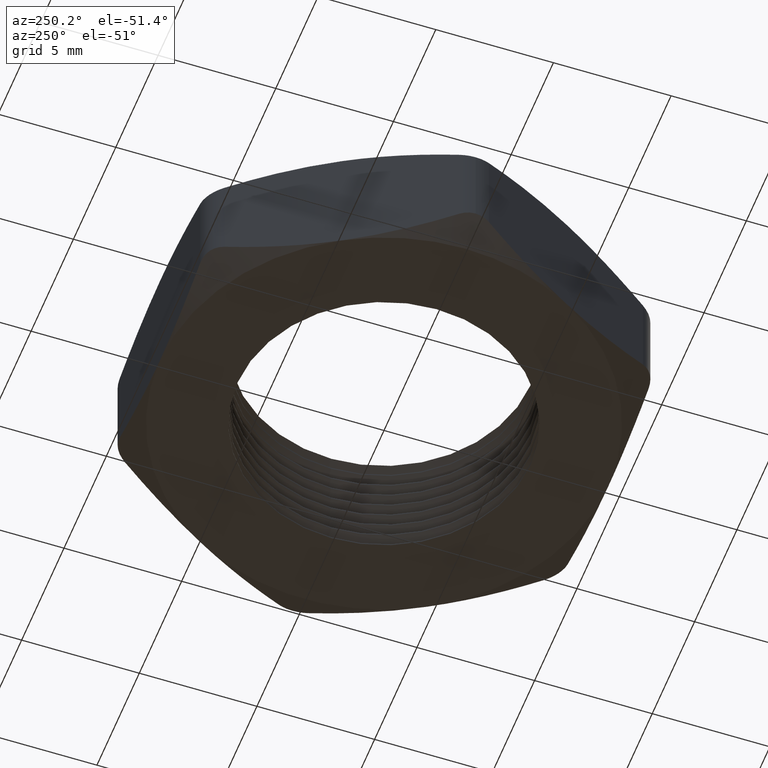
[diagram: clean part render]
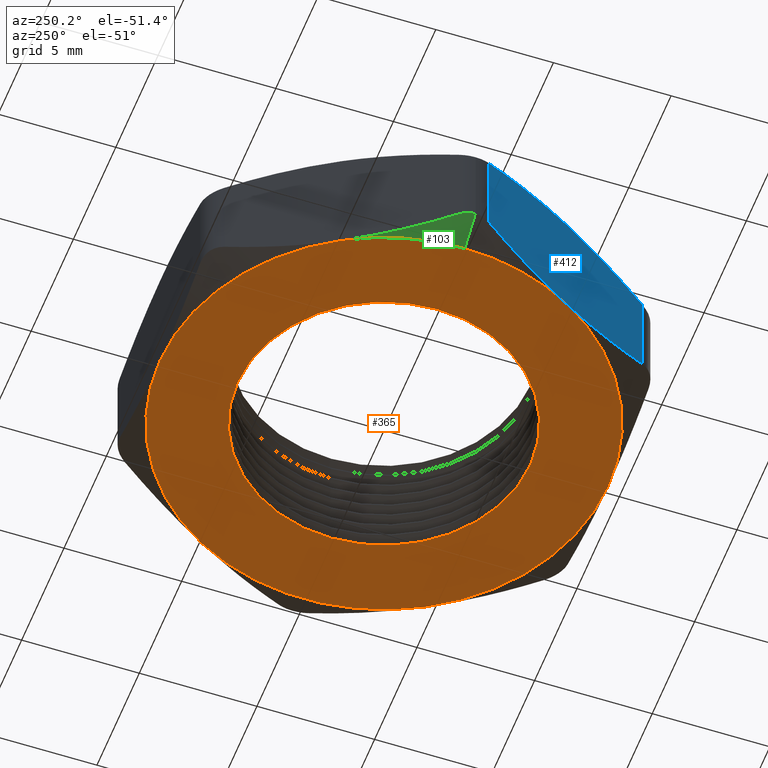
[diagram: same view with three faces highlighted in distinct colors, each labeled with its STEP entity id]
A machine part, auxiliary view with three faces highlighted in distinct colors.
Their STEP definitions:

[orange] entity #365 — the highlighted planar face has unit normal (0, 0, -1).
#106 = EDGE_CURVE ( 'NONE', #107, #108, #872, .T. ) ;
#107 = VERTEX_POINT ( 'NONE', #868 ) ;
#108 = VERTEX_POINT ( 'NONE', #867 ) ;
#243 = VERTEX_POINT ( 'NONE', #1185 ) ;
#277 = VERTEX_POINT ( 'NONE', #1359 ) ;
#285 = VERTEX_POINT ( 'NONE', #1272 ) ;
#302 = VERTEX_POINT ( 'NONE', #1410 ) ;
#324 = EDGE_CURVE ( 'NONE', #285, #107, #1296, .T. ) ;
#325 = ORIENTED_EDGE ( 'NONE', *, *, #106, .T. ) ;
#326 = ORIENTED_EDGE ( 'NONE', *, *, #327, .T. ) ;
#327 = EDGE_CURVE ( 'NONE', #108, #335, #1286, .T. ) ;
#328 = ORIENTED_EDGE ( 'NONE', *, *, #713, .T. ) ;
#335 = VERTEX_POINT ( 'NONE', #1499 ) ;
#347 = ORIENTED_EDGE ( 'NONE', *, *, #479, .T. ) ;
#348 = ORIENTED_EDGE ( 'NONE', *, *, #359, .T. ) ;
#349 = EDGE_LOOP ( 'NONE', ( #350, #325, #326, #328, #556, #553, #715 ) ) ;
#350 = ORIENTED_EDGE ( 'NONE', *, *, #324, .T. ) ;
#359 = EDGE_CURVE ( 'NONE', #401, #480, #1426, .T. ) ;
#365 = ADVANCED_FACE ( 'NONE', ( #1486, #1485 ), #1484, .T. ) ;
#366 = EDGE_LOOP ( 'NONE', ( #347, #348 ) ) ;
#401 = VERTEX_POINT ( 'NONE', #1696 ) ;
#479 = EDGE_CURVE ( 'NONE', #480, #401, #1951, .T. ) ;
#480 = VERTEX_POINT ( 'NONE', #1947 ) ;
#552 = EDGE_CURVE ( 'NONE', #243, #302, #1875, .T. ) ;
#553 = ORIENTED_EDGE ( 'NONE', *, *, #552, .T. ) ;
#556 = ORIENTED_EDGE ( 'NONE', *, *, #714, .T. ) ;
#713 = EDGE_CURVE ( 'NONE', #335, #277, #2002, .T. ) ;
#714 = EDGE_CURVE ( 'NONE', #277, #243, #1993, .T. ) ;
#715 = ORIENTED_EDGE ( 'NONE', *, *, #716, .T. ) ;
#716 = EDGE_CURVE ( 'NONE', #302, #285, #1988, .T. ) ;
#736 = AXIS2_PLACEMENT_3D ( 'NONE', #1039, #1142, #1194 ) ;
#867 = CARTESIAN_POINT ( 'NONE',  ( -0.3247595264191646100, 0.1875000000000000600, 0.0000000000000000000 ) ) ;
#868 = CARTESIAN_POINT ( 'NONE',  ( -0.3750000000000001100, 0.0000000000000000000, 0.0000000000000000000 ) ) ;
#869 = DIRECTION ( 'NONE',  ( -1.000000000000000000, 0.0000000000000000000, 0.0000000000000000000 ) ) ;
#870 = DIRECTION ( 'NONE',  ( 0.0000000000000000000, 0.0000000000000000000, -1.000000000000000000 ) ) ;
#871 = AXIS2_PLACEMENT_3D ( 'NONE', #877, #870, #869 ) ;
#872 = CIRCLE ( 'NONE', #871, 0.3750000000000001100 ) ;
#877 = CARTESIAN_POINT ( 'NONE',  ( 0.0000000000000000000, 0.0000000000000000000, 0.0000000000000000000 ) ) ;
#1039 = CARTESIAN_POINT ( 'NONE',  ( 0.0000000000000000000, 0.0000000000000000000, 0.0000000000000000000 ) ) ;
#1142 = DIRECTION ( 'NONE',  ( 0.0000000000000000000, 0.0000000000000000000, -1.000000000000000000 ) ) ;
#1185 = CARTESIAN_POINT ( 'NONE',  ( 0.3247595264191645600, -0.1875000000000000300, 0.0000000000000000000 ) ) ;
#1194 = DIRECTION ( 'NONE',  ( -1.000000000000000000, 0.0000000000000000000, 0.0000000000000000000 ) ) ;
#1272 = CARTESIAN_POINT ( 'NONE',  ( -0.3247595264191646700, -0.1874999999999999400, 0.0000000000000000000 ) ) ;
#1286 = CIRCLE ( 'NONE', #736, 0.3750000000000001100 ) ;
#1288 = DIRECTION ( 'NONE',  ( -1.000000000000000000, 0.0000000000000000000, 0.0000000000000000000 ) ) ;
#1289 = DIRECTION ( 'NONE',  ( 0.0000000000000000000, 0.0000000000000000000, -1.000000000000000000 ) ) ;
#1290 = CARTESIAN_POINT ( 'NONE',  ( 0.0000000000000000000, 0.0000000000000000000, 0.0000000000000000000 ) ) ;
#1291 = AXIS2_PLACEMENT_3D ( 'NONE', #1290, #1289, #1288 ) ;
#1296 = CIRCLE ( 'NONE', #1291, 0.3750000000000001100 ) ;
#1359 = CARTESIAN_POINT ( 'NONE',  ( 0.3247595264191646100, 0.1874999999999999700, 0.0000000000000000000 ) ) ;
#1410 = CARTESIAN_POINT ( 'NONE',  ( 5.914624404477002600E-017, -0.3750000000000001100, 0.0000000000000000000 ) ) ;
#1422 = DIRECTION ( 'NONE',  ( 1.000000000000000000, 0.0000000000000000000, 0.0000000000000000000 ) ) ;
#1423 = DIRECTION ( 'NONE',  ( 0.0000000000000000000, 0.0000000000000000000, 1.000000000000000000 ) ) ;
#1424 = CARTESIAN_POINT ( 'NONE',  ( 0.0000000000000000000, 0.0000000000000000000, 0.0000000000000000000 ) ) ;
#1425 = AXIS2_PLACEMENT_3D ( 'NONE', #1424, #1423, #1422 ) ;
#1426 = CIRCLE ( 'NONE', #1425, 0.2450000000000000000 ) ;
#1480 = DIRECTION ( 'NONE',  ( -1.000000000000000000, 0.0000000000000000000, 0.0000000000000000000 ) ) ;
#1481 = DIRECTION ( 'NONE',  ( 0.0000000000000000000, 0.0000000000000000000, -1.000000000000000000 ) ) ;
#1482 = CARTESIAN_POINT ( 'NONE',  ( -0.2165063509461097000, 0.3750000000000001100, 0.0000000000000000000 ) ) ;
#1483 = AXIS2_PLACEMENT_3D ( 'NONE', #1482, #1481, #1480 ) ;
#1484 = PLANE ( 'NONE',  #1483 ) ;
#1485 = FACE_OUTER_BOUND ( 'NONE', #349, .T. ) ;
#1486 = FACE_BOUND ( 'NONE', #366, .T. ) ;
#1499 = CARTESIAN_POINT ( 'NONE',  ( 0.0000000000000000000, 0.3750000000000001100, 0.0000000000000000000 ) ) ;
#1696 = CARTESIAN_POINT ( 'NONE',  ( 0.2450000000000000000, 3.000384657911014900E-017, 0.0000000000000000000 ) ) ;
#1871 = DIRECTION ( 'NONE',  ( -1.000000000000000000, 0.0000000000000000000, 0.0000000000000000000 ) ) ;
#1872 = DIRECTION ( 'NONE',  ( 0.0000000000000000000, 0.0000000000000000000, -1.000000000000000000 ) ) ;
#1873 = CARTESIAN_POINT ( 'NONE',  ( 0.0000000000000000000, 0.0000000000000000000, 0.0000000000000000000 ) ) ;
#1874 = AXIS2_PLACEMENT_3D ( 'NONE', #1873, #1872, #1871 ) ;
#1875 = CIRCLE ( 'NONE', #1874, 0.3750000000000001100 ) ;
#1897 = CARTESIAN_POINT ( 'NONE',  ( 0.0000000000000000000, 0.0000000000000000000, 0.0000000000000000000 ) ) ;
#1947 = CARTESIAN_POINT ( 'NONE',  ( -0.2450000000000000000, 0.0000000000000000000, 0.0000000000000000000 ) ) ;
#1948 = DIRECTION ( 'NONE',  ( 1.000000000000000000, 0.0000000000000000000, 0.0000000000000000000 ) ) ;
#1949 = DIRECTION ( 'NONE',  ( 0.0000000000000000000, 0.0000000000000000000, 1.000000000000000000 ) ) ;
#1950 = AXIS2_PLACEMENT_3D ( 'NONE', #1897, #1949, #1948 ) ;
#1951 = CIRCLE ( 'NONE', #1950, 0.2450000000000000000 ) ;
#1984 = DIRECTION ( 'NONE',  ( -1.000000000000000000, 0.0000000000000000000, 0.0000000000000000000 ) ) ;
#1985 = DIRECTION ( 'NONE',  ( 0.0000000000000000000, 0.0000000000000000000, -1.000000000000000000 ) ) ;
#1986 = CARTESIAN_POINT ( 'NONE',  ( 0.0000000000000000000, 0.0000000000000000000, 0.0000000000000000000 ) ) ;
#1987 = AXIS2_PLACEMENT_3D ( 'NONE', #1986, #1985, #1984 ) ;
#1988 = CIRCLE ( 'NONE', #1987, 0.3750000000000001100 ) ;
#1989 = DIRECTION ( 'NONE',  ( -1.000000000000000000, 0.0000000000000000000, 0.0000000000000000000 ) ) ;
#1990 = DIRECTION ( 'NONE',  ( 0.0000000000000000000, 0.0000000000000000000, -1.000000000000000000 ) ) ;
#1991 = CARTESIAN_POINT ( 'NONE',  ( 0.0000000000000000000, 0.0000000000000000000, 0.0000000000000000000 ) ) ;
#1992 = AXIS2_PLACEMENT_3D ( 'NONE', #1991, #1990, #1989 ) ;
#1993 = CIRCLE ( 'NONE', #1992, 0.3750000000000001100 ) ;
#1994 = DIRECTION ( 'NONE',  ( -1.000000000000000000, 0.0000000000000000000, 0.0000000000000000000 ) ) ;
#1995 = DIRECTION ( 'NONE',  ( 0.0000000000000000000, 0.0000000000000000000, -1.000000000000000000 ) ) ;
#1996 = CARTESIAN_POINT ( 'NONE',  ( 0.0000000000000000000, 0.0000000000000000000, 0.0000000000000000000 ) ) ;
#1997 = AXIS2_PLACEMENT_3D ( 'NONE', #1996, #1995, #1994 ) ;
#2002 = CIRCLE ( 'NONE', #1997, 0.3750000000000001100 ) ;

[blue] entity #412 — the highlighted planar face has unit normal (0.866, 0.5, 0).
#91 = VERTEX_POINT ( 'NONE', #963 ) ;
#100 = VERTEX_POINT ( 'NONE', #890 ) ;
#102 = EDGE_CURVE ( 'NONE', #91, #100, #889, .T. ) ;
#282 = ORIENTED_EDGE ( 'NONE', *, *, #283, .F. ) ;
#283 = EDGE_CURVE ( 'NONE', #284, #285, #1274, .T. ) ;
#284 = VERTEX_POINT ( 'NONE', #1273 ) ;
#285 = VERTEX_POINT ( 'NONE', #1272 ) ;
#286 = ORIENTED_EDGE ( 'NONE', *, *, #287, .T. ) ;
#287 = EDGE_CURVE ( 'NONE', #284, #288, #1352, .T. ) ;
#288 = VERTEX_POINT ( 'NONE', #1348 ) ;
#289 = ORIENTED_EDGE ( 'NONE', *, *, #290, .F. ) ;
#290 = EDGE_CURVE ( 'NONE', #291, #288, #1310, .T. ) ;
#291 = VERTEX_POINT ( 'NONE', #1309 ) ;
#292 = ORIENTED_EDGE ( 'NONE', *, *, #293, .F. ) ;
#293 = EDGE_CURVE ( 'NONE', #91, #291, #1381, .T. ) ;
#294 = ORIENTED_EDGE ( 'NONE', *, *, #102, .T. ) ;
#295 = ORIENTED_EDGE ( 'NONE', *, *, #296, .F. ) ;
#296 = EDGE_CURVE ( 'NONE', #285, #100, #1263, .T. ) ;
#412 = ADVANCED_FACE ( 'NONE', ( #1652 ), #1649, .F. ) ;
#413 = EDGE_LOOP ( 'NONE', ( #282, #286, #289, #292, #294, #295 ) ) ;
#880 = DIRECTION ( 'NONE',  ( 0.0000000000000000000, 0.0000000000000000000, -1.000000000000000000 ) ) ;
#881 = VECTOR ( 'NONE', #880, 39.37007874015748100 ) ;
#882 = CARTESIAN_POINT ( 'NONE',  ( -0.4185789451624787300, -0.02500000000000002900, 0.2000000000000000100 ) ) ;
#889 = LINE ( 'NONE', #882, #881 ) ;
#890 = CARTESIAN_POINT ( 'NONE',  ( -0.4185789451624788400, -0.02499999999999998400, 0.02559096649278918800 ) ) ;
#963 = CARTESIAN_POINT ( 'NONE',  ( -0.4185789451624683500, -0.02500000000001800800, 0.1744090335072159800 ) ) ;
#1256 = CARTESIAN_POINT ( 'NONE',  ( -0.3643367906226816500, -0.1189501675749315100, 0.004597593372874871200 ) ) ;
#1257 = CARTESIAN_POINT ( 'NONE',  ( -0.3564809560658953000, -0.1325568721631410800, 0.002889938155333194500 ) ) ;
#1258 = CARTESIAN_POINT ( 'NONE',  ( -0.3406768993189374700, -0.1599303014145736200, 0.0005901327189829690200 ) ) ;
#1259 = CARTESIAN_POINT ( 'NONE',  ( -0.3326984364596727900, -0.1737494044531210400, -1.701735877889249200E-016 ) ) ;
#1260 = CARTESIAN_POINT ( 'NONE',  ( -0.3247595264191646700, -0.1874999999999999400, 0.0000000000000000000 ) ) ;
#1263 = B_SPLINE_CURVE_WITH_KNOTS ( 'NONE', 3,
 ( #1260, #1259, #1258, #1257, #1256, #1418, #1417, #1416 ),
 .UNSPECIFIED., .F., .F.,
 ( 4, 2, 2, 4 ),
 ( 0.005564589980275969800, 0.006762186791010956300, 0.007959783601745942800, 0.01035497722321591400 ),
 .UNSPECIFIED. ) ;
#1265 = CARTESIAN_POINT ( 'NONE',  ( -0.3247595264191646700, -0.1875000000000000300, 0.2000000000000000100 ) ) ;
#1266 = CARTESIAN_POINT ( 'NONE',  ( -0.3407024386049762900, -0.1598860660735655400, 0.2000000000000002300 ) ) ;
#1267 = CARTESIAN_POINT ( 'NONE',  ( -0.3564745969185513800, -0.1325678865294334400, 0.1976226184107980600 ) ) ;
#1272 = CARTESIAN_POINT ( 'NONE',  ( -0.3247595264191646700, -0.1874999999999999400, 0.0000000000000000000 ) ) ;
#1273 = CARTESIAN_POINT ( 'NONE',  ( -0.2309401076758609600, -0.3499999999999819900, 0.02559096649278403200 ) ) ;
#1274 = B_SPLINE_CURVE_WITH_KNOTS ( 'NONE', 3,
 ( #1327, #1326, #1325, #1355, #1354, #1353 ),
 .UNSPECIFIED., .F., .F.,
 ( 4, 2, 4 ),
 ( 0.0007545642487503553800, 0.003159577114513162600, 0.005564589980275969800 ),
 .UNSPECIFIED. ) ;
#1309 = CARTESIAN_POINT ( 'NONE',  ( -0.3247595264191646700, -0.1875000000000000300, 0.2000000000000000100 ) ) ;
#1310 = B_SPLINE_CURVE_WITH_KNOTS ( 'NONE', 3,
 ( #1344, #1343, #1342, #1341, #1340, #1339, #1383, #1382 ),
 .UNSPECIFIED., .F., .F.,
 ( 4, 2, 2, 4 ),
 ( 0.005564589980275969800, 0.006762186791010956300, 0.007959783601745942800, 0.01035497722321591400 ),
 .UNSPECIFIED. ) ;
#1325 = CARTESIAN_POINT ( 'NONE',  ( -0.2617931203539623500, -0.2965610144749438200, 0.01121127792037122100 ) ) ;
#1326 = CARTESIAN_POINT ( 'NONE',  ( -0.2463125204502328300, -0.3233742000398489000, 0.01764798529039914700 ) ) ;
#1327 = CARTESIAN_POINT ( 'NONE',  ( -0.2309401076758609600, -0.3499999999999819900, 0.02559096649278403200 ) ) ;
#1339 = CARTESIAN_POINT ( 'NONE',  ( -0.2617398379950048900, -0.2966533022278050000, 0.1887692090713127300 ) ) ;
#1340 = CARTESIAN_POINT ( 'NONE',  ( -0.2851822622156476900, -0.2560498324250684600, 0.1954024066271251900 ) ) ;
#1341 = CARTESIAN_POINT ( 'NONE',  ( -0.2930380967724341400, -0.2424431278368588400, 0.1971100618446667600 ) ) ;
#1342 = CARTESIAN_POINT ( 'NONE',  ( -0.3088421535193919300, -0.2150696985854264100, 0.1994098672810170300 ) ) ;
#1343 = CARTESIAN_POINT ( 'NONE',  ( -0.3168206163786563300, -0.2012505955468788500, 0.2000000000000001500 ) ) ;
#1344 = CARTESIAN_POINT ( 'NONE',  ( -0.3247595264191646700, -0.1875000000000000300, 0.2000000000000000100 ) ) ;
#1348 = CARTESIAN_POINT ( 'NONE',  ( -0.2309401076758505800, -0.3500000000000000300, 0.1744090335072107900 ) ) ;
#1349 = DIRECTION ( 'NONE',  ( 0.0000000000000000000, 0.0000000000000000000, 1.000000000000000000 ) ) ;
#1350 = VECTOR ( 'NONE', #1349, 39.37007874015748100 ) ;
#1351 = CARTESIAN_POINT ( 'NONE',  ( -0.2309401076758506300, -0.3499999999999999800, 0.2000000000000000100 ) ) ;
#1352 = LINE ( 'NONE', #1351, #1350 ) ;
#1353 = CARTESIAN_POINT ( 'NONE',  ( -0.3247595264191646700, -0.1874999999999999400, 0.0000000000000000000 ) ) ;
#1354 = CARTESIAN_POINT ( 'NONE',  ( -0.3088166142333531600, -0.2151139339264343500, -1.701402400350960700E-016 ) ) ;
#1355 = CARTESIAN_POINT ( 'NONE',  ( -0.2930444559197779600, -0.2424321134705665900, 0.002377381589201922100 ) ) ;
#1378 = CARTESIAN_POINT ( 'NONE',  ( -0.3877259324843670400, -0.07843898552505623700, 0.1887887220796288200 ) ) ;
#1379 = CARTESIAN_POINT ( 'NONE',  ( -0.4032065323880963900, -0.05162579996015103500, 0.1823520147096008300 ) ) ;
#1380 = CARTESIAN_POINT ( 'NONE',  ( -0.4185789451624683500, -0.02500000000001800800, 0.1744090335072159800 ) ) ;
#1381 = B_SPLINE_CURVE_WITH_KNOTS ( 'NONE', 3,
 ( #1380, #1379, #1378, #1267, #1266, #1265 ),
 .UNSPECIFIED., .F., .F.,
 ( 4, 2, 4 ),
 ( 0.0007545642487503563500, 0.003159577114513163100, 0.005564589980275969800 ),
 .UNSPECIFIED. ) ;
#1382 = CARTESIAN_POINT ( 'NONE',  ( -0.2309401076758505800, -0.3500000000000000300, 0.1744090335072107900 ) ) ;
#1383 = CARTESIAN_POINT ( 'NONE',  ( -0.2462782553154251600, -0.3234335489942642400, 0.1823343097906882600 ) ) ;
#1416 = CARTESIAN_POINT ( 'NONE',  ( -0.4185789451624788400, -0.02499999999999998400, 0.02559096649278918800 ) ) ;
#1417 = CARTESIAN_POINT ( 'NONE',  ( -0.4032407975229043700, -0.05156645100573575100, 0.01766569020931175700 ) ) ;
#1418 = CARTESIAN_POINT ( 'NONE',  ( -0.3877792148433245600, -0.07834669777219498100, 0.01123079092868730900 ) ) ;
#1638 = DIRECTION ( 'NONE',  ( -0.4999999999999996100, 0.8660254037844388200, 0.0000000000000000000 ) ) ;
#1639 = DIRECTION ( 'NONE',  ( 0.8660254037844388200, 0.4999999999999996100, 0.0000000000000000000 ) ) ;
#1648 = CARTESIAN_POINT ( 'NONE',  ( -0.4330127018922194100, 1.498552917579708900E-018, 0.2000000000000000100 ) ) ;
#1649 = PLANE ( 'NONE',  #1651 ) ;
#1651 = AXIS2_PLACEMENT_3D ( 'NONE', #1648, #1639, #1638 ) ;
#1652 = FACE_OUTER_BOUND ( 'NONE', #413, .T. ) ;

[green] entity #103 — the highlighted conical surface has half-angle 60 deg.
#6 = ORIENTED_EDGE ( 'NONE', *, *, #14, .T. ) ;
#8 = VERTEX_POINT ( 'NONE', #757 ) ;
#11 = ORIENTED_EDGE ( 'NONE', *, *, #18, .T. ) ;
#14 = EDGE_CURVE ( 'NONE', #94, #8, #751, .T. ) ;
#18 = EDGE_CURVE ( 'NONE', #8, #108, #738, .T. ) ;
#94 = VERTEX_POINT ( 'NONE', #952 ) ;
#103 = ADVANCED_FACE ( 'NONE', ( #879 ), #878, .T. ) ;
#104 = EDGE_LOOP ( 'NONE', ( #105, #109, #6, #11 ) ) ;
#105 = ORIENTED_EDGE ( 'NONE', *, *, #106, .F. ) ;
#106 = EDGE_CURVE ( 'NONE', #107, #108, #872, .T. ) ;
#107 = VERTEX_POINT ( 'NONE', #868 ) ;
#108 = VERTEX_POINT ( 'NONE', #867 ) ;
#109 = ORIENTED_EDGE ( 'NONE', *, *, #110, .T. ) ;
#110 = EDGE_CURVE ( 'NONE', #107, #94, #915, .T. ) ;
#729 = CARTESIAN_POINT ( 'NONE',  ( -0.3247595264191646100, 0.1875000000000000600, 0.0000000000000000000 ) ) ;
#730 = CARTESIAN_POINT ( 'NONE',  ( -0.3407024386049761200, 0.1598860660735655600, -2.478405064564551100E-016 ) ) ;
#731 = CARTESIAN_POINT ( 'NONE',  ( -0.3564745969185512700, 0.1325678865294334400, 0.002377381589201906900 ) ) ;
#732 = CARTESIAN_POINT ( 'NONE',  ( -0.3877259324843671000, 0.07843898552505623700, 0.01121127792037121200 ) ) ;
#733 = CARTESIAN_POINT ( 'NONE',  ( -0.4032065323880963900, 0.05162579996015098000, 0.01764798529039914000 ) ) ;
#734 = CARTESIAN_POINT ( 'NONE',  ( -0.4185789451624684600, 0.02500000000001798700, 0.02559096649278403200 ) ) ;
#738 = B_SPLINE_CURVE_WITH_KNOTS ( 'NONE', 3,
 ( #734, #733, #732, #731, #730, #729 ),
 .UNSPECIFIED., .F., .F.,
 ( 4, 2, 4 ),
 ( 0.0007545642487503562400, 0.003159577114513164800, 0.005564589980275973200 ),
 .UNSPECIFIED. ) ;
#741 = CARTESIAN_POINT ( 'NONE',  ( -0.4185789451624684600, 0.02500000000001798700, 0.02559096649278403200 ) ) ;
#742 = CARTESIAN_POINT ( 'NONE',  ( -0.4207294041380170200, 0.02127529579478045600, 0.02670211641244793800 ) ) ;
#743 = CARTESIAN_POINT ( 'NONE',  ( -0.4224201646834369600, 0.01721831756676461500, 0.02756835478330192300 ) ) ;
#744 = CARTESIAN_POINT ( 'NONE',  ( -0.4246838449260745800, 0.008826956808419467200, 0.02872578618615685400 ) ) ;
#745 = CARTESIAN_POINT ( 'NONE',  ( -0.4252776749732541900, 0.004388562669415085400, 0.02902782918003678200 ) ) ;
#746 = CARTESIAN_POINT ( 'NONE',  ( -0.4252776749734100100, 1.775217357099142600E-014, 0.02902782918011619100 ) ) ;
#751 = B_SPLINE_CURVE_WITH_KNOTS ( 'NONE', 3,
 ( #746, #745, #744, #743, #742, #741 ),
 .UNSPECIFIED., .F., .F.,
 ( 4, 2, 4 ),
 ( 0.0006698882910001488800, 0.001003754490161115200, 0.001337620689322081500 ),
 .UNSPECIFIED. ) ;
#757 = CARTESIAN_POINT ( 'NONE',  ( -0.4185789451624684600, 0.02500000000001798700, 0.02559096649278403200 ) ) ;
#867 = CARTESIAN_POINT ( 'NONE',  ( -0.3247595264191646100, 0.1875000000000000600, 0.0000000000000000000 ) ) ;
#868 = CARTESIAN_POINT ( 'NONE',  ( -0.3750000000000001100, 0.0000000000000000000, 0.0000000000000000000 ) ) ;
#869 = DIRECTION ( 'NONE',  ( -1.000000000000000000, 0.0000000000000000000, 0.0000000000000000000 ) ) ;
#870 = DIRECTION ( 'NONE',  ( 0.0000000000000000000, 0.0000000000000000000, -1.000000000000000000 ) ) ;
#871 = AXIS2_PLACEMENT_3D ( 'NONE', #877, #870, #869 ) ;
#872 = CIRCLE ( 'NONE', #871, 0.3750000000000001100 ) ;
#873 = DIRECTION ( 'NONE',  ( -1.000000000000000000, 0.0000000000000000000, 0.0000000000000000000 ) ) ;
#874 = DIRECTION ( 'NONE',  ( 0.0000000000000000000, 0.0000000000000000000, 1.000000000000000000 ) ) ;
#875 = CARTESIAN_POINT ( 'NONE',  ( 0.0000000000000000000, 0.0000000000000000000, 0.0000000000000000000 ) ) ;
#876 = AXIS2_PLACEMENT_3D ( 'NONE', #875, #874, #873 ) ;
#877 = CARTESIAN_POINT ( 'NONE',  ( 0.0000000000000000000, 0.0000000000000000000, 0.0000000000000000000 ) ) ;
#878 = CONICAL_SURFACE ( 'NONE', #876, 0.3750000000000001100, 1.047197551196600100 ) ;
#879 = FACE_OUTER_BOUND ( 'NONE', #104, .T. ) ;
#912 = DIRECTION ( 'NONE',  ( -0.8660254037844397100, 0.0000000000000000000, 0.4999999999999979500 ) ) ;
#913 = VECTOR ( 'NONE', #912, 39.37007874015748900 ) ;
#914 = CARTESIAN_POINT ( 'NONE',  ( -0.3750000000000001100, 0.0000000000000000000, 0.0000000000000000000 ) ) ;
#915 = LINE ( 'NONE', #914, #913 ) ;
#952 = CARTESIAN_POINT ( 'NONE',  ( -0.4252776749734100100, 1.775217357099142600E-014, 0.02902782918011619100 ) ) ;